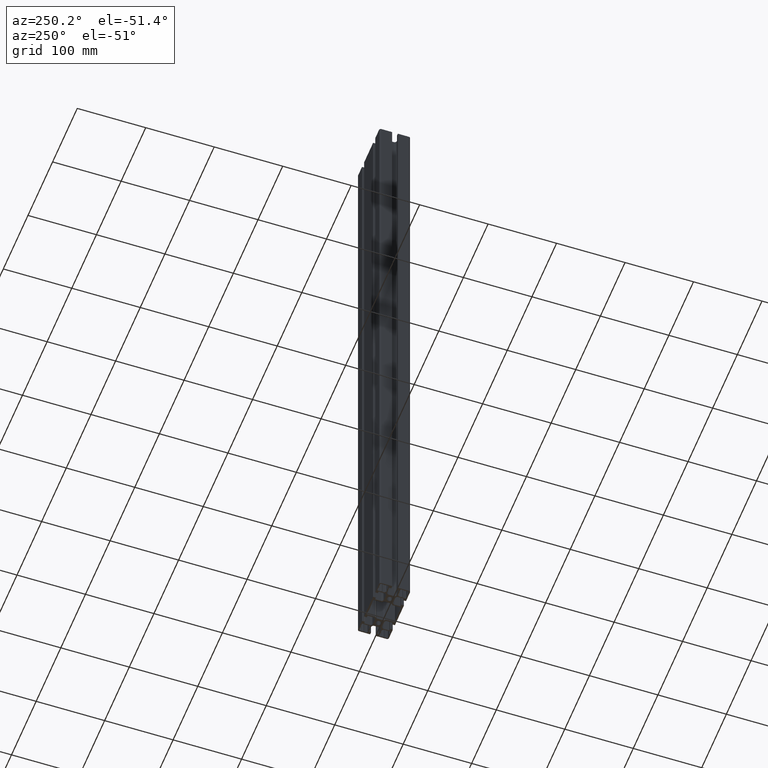
[diagram: clean part render]
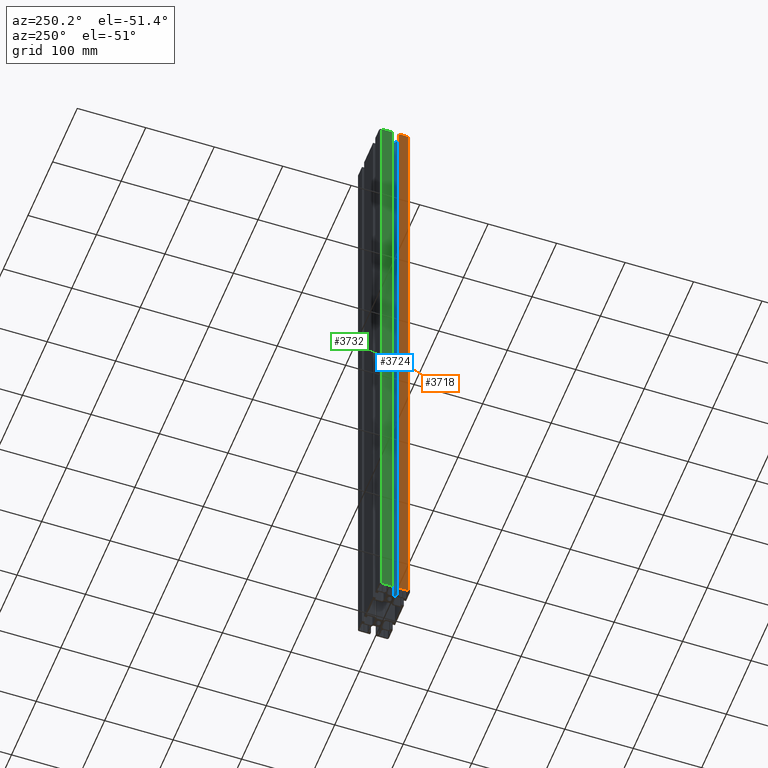
[diagram: same view with three faces highlighted in distinct colors, each labeled with its STEP entity id]
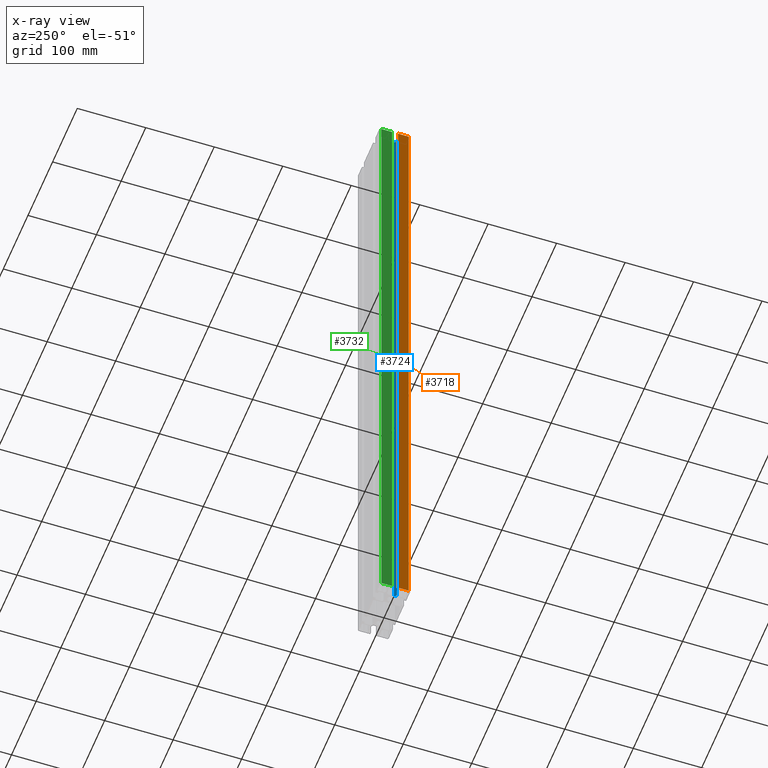
[diagram: x-ray of the same camera — body ghosted, the three highlighted faces saturated]
A machine part, auxiliary view with three faces highlighted in distinct colors.
The next image is the same camera in x-ray (body ghosted, the three faces saturated) — at least one of them is partly hidden behind the body in this view.
Their STEP definitions:

[orange] entity #3718 — the highlighted planar face has unit normal (-1, 0, 0).
#93=PLANE('',#4101);
#252=FACE_OUTER_BOUND('',#454,.T.);
#454=EDGE_LOOP('',(#3243,#3244,#3245,#3246));
#644=LINE('',#5656,#1030);
#750=LINE('',#6025,#1136);
#840=LINE('',#6261,#1226);
#841=LINE('',#6263,#1227);
#1030=VECTOR('',#4509,10.);
#1136=VECTOR('',#4801,10.);
#1226=VECTOR('',#5075,10.);
#1227=VECTOR('',#5078,10.);
#1611=VERTEX_POINT('',#5653);
#1612=VERTEX_POINT('',#5655);
#1781=VERTEX_POINT('',#6022);
#1782=VERTEX_POINT('',#6024);
#2019=EDGE_CURVE('',#1612,#1611,#644,.T.);
#2209=EDGE_CURVE('',#1781,#1782,#750,.T.);
#2328=EDGE_CURVE('',#1611,#1782,#840,.T.);
#2329=EDGE_CURVE('',#1612,#1781,#841,.T.);
#3243=ORIENTED_EDGE('',*,*,#2019,.T.);
#3244=ORIENTED_EDGE('',*,*,#2328,.T.);
#3245=ORIENTED_EDGE('',*,*,#2209,.F.);
#3246=ORIENTED_EDGE('',*,*,#2329,.F.);
#3718=ADVANCED_FACE('',(#252),#93,.T.);
#4101=AXIS2_PLACEMENT_3D('',#6262,#5076,#5077);
#4509=DIRECTION('',(0.,-1.,0.));
#4801=DIRECTION('',(0.,-1.,0.));
#5075=DIRECTION('',(0.,0.,1.));
#5076=DIRECTION('center_axis',(-1.,0.,0.));
#5077=DIRECTION('ref_axis',(0.,-1.,0.));
#5078=DIRECTION('',(0.,0.,1.));
#5653=CARTESIAN_POINT('',(-45.,-20.,0.));
#5655=CARTESIAN_POINT('',(-45.,-4.45,0.));
#5656=CARTESIAN_POINT('',(-45.,-4.45,0.));
#6022=CARTESIAN_POINT('',(-45.,-4.45,1000.));
#6024=CARTESIAN_POINT('',(-45.,-20.,1000.));
#6025=CARTESIAN_POINT('',(-45.,-4.45,1000.));
#6261=CARTESIAN_POINT('',(-45.,-20.,0.));
#6262=CARTESIAN_POINT('Origin',(-45.,-4.45,0.));
#6263=CARTESIAN_POINT('',(-45.,-4.45,0.));

[blue] entity #3724 — the highlighted cylindrical surface (edge-blend (fillet) strip) has radius 3.2 mm, axis along (0, 0, 1).
#258=FACE_OUTER_BOUND('',#460,.T.);
#460=EDGE_LOOP('',(#3267,#3268,#3269,#3270));
#846=LINE('',#6273,#1232);
#847=LINE('',#6275,#1233);
#1232=VECTOR('',#5093,10.);
#1233=VECTOR('',#5096,10.);
#1354=CIRCLE('',#3918,3.20000000000001);
#1433=CIRCLE('',#4006,3.20000000000001);
#1617=VERTEX_POINT('',#5665);
#1618=VERTEX_POINT('',#5667);
#1775=VERTEX_POINT('',#6010);
#1776=VERTEX_POINT('',#6012);
#2025=EDGE_CURVE('',#1618,#1617,#1354,.T.);
#2203=EDGE_CURVE('',#1775,#1776,#1433,.T.);
#2334=EDGE_CURVE('',#1617,#1776,#846,.T.);
#2335=EDGE_CURVE('',#1618,#1775,#847,.T.);
#3267=ORIENTED_EDGE('',*,*,#2025,.T.);
#3268=ORIENTED_EDGE('',*,*,#2334,.T.);
#3269=ORIENTED_EDGE('',*,*,#2203,.F.);
#3270=ORIENTED_EDGE('',*,*,#2335,.F.);
#3570=CYLINDRICAL_SURFACE('',#4107,3.20000000000001);
#3724=ADVANCED_FACE('',(#258),#3570,.F.);
#3918=AXIS2_PLACEMENT_3D('',#5668,#4517,#4518);
#4006=AXIS2_PLACEMENT_3D('',#6013,#4792,#4793);
#4107=AXIS2_PLACEMENT_3D('',#6274,#5094,#5095);
#4517=DIRECTION('center_axis',(0.,0.,-1.));
#4518=DIRECTION('ref_axis',(0.,1.,0.));
#4792=DIRECTION('center_axis',(0.,0.,-1.));
#4793=DIRECTION('ref_axis',(0.,1.,0.));
#5093=DIRECTION('',(0.,0.,1.));
#5094=DIRECTION('center_axis',(0.,0.,1.));
#5095=DIRECTION('ref_axis',(0.,1.,0.));
#5096=DIRECTION('',(0.,0.,1.));
#5665=CARTESIAN_POINT('',(-32.45,-7.15,0.));
#5667=CARTESIAN_POINT('',(-29.25,-3.95,0.));
#5668=CARTESIAN_POINT('Origin',(-32.45,-3.95,0.));
#6010=CARTESIAN_POINT('',(-29.25,-3.95,1000.));
#6012=CARTESIAN_POINT('',(-32.45,-7.15,1000.));
#6013=CARTESIAN_POINT('Origin',(-32.45,-3.95,1000.));
#6273=CARTESIAN_POINT('',(-32.45,-7.15,0.));
#6274=CARTESIAN_POINT('Origin',(-32.45,-3.95,0.));
#6275=CARTESIAN_POINT('',(-29.25,-3.95,0.));

[green] entity #3732 — the highlighted planar face has unit normal (-1, 0, 0).
#101=PLANE('',#4115);
#266=FACE_OUTER_BOUND('',#468,.T.);
#468=EDGE_LOOP('',(#3299,#3300,#3301,#3302));
#652=LINE('',#5684,#1038);
#742=LINE('',#5997,#1128);
#854=LINE('',#6289,#1240);
#855=LINE('',#6291,#1241);
#1038=VECTOR('',#4529,10.);
#1128=VECTOR('',#4781,10.);
#1240=VECTOR('',#5117,10.);
#1241=VECTOR('',#5120,10.);
#1625=VERTEX_POINT('',#5681);
#1626=VERTEX_POINT('',#5683);
#1767=VERTEX_POINT('',#5994);
#1768=VERTEX_POINT('',#5996);
#2033=EDGE_CURVE('',#1626,#1625,#652,.T.);
#2195=EDGE_CURVE('',#1767,#1768,#742,.T.);
#2342=EDGE_CURVE('',#1625,#1768,#854,.T.);
#2343=EDGE_CURVE('',#1626,#1767,#855,.T.);
#3299=ORIENTED_EDGE('',*,*,#2033,.T.);
#3300=ORIENTED_EDGE('',*,*,#2342,.T.);
#3301=ORIENTED_EDGE('',*,*,#2195,.F.);
#3302=ORIENTED_EDGE('',*,*,#2343,.F.);
#3732=ADVANCED_FACE('',(#266),#101,.T.);
#4115=AXIS2_PLACEMENT_3D('',#6290,#5118,#5119);
#4529=DIRECTION('',(0.,-1.,0.));
#4781=DIRECTION('',(0.,-1.,0.));
#5117=DIRECTION('',(0.,0.,1.));
#5118=DIRECTION('center_axis',(-1.,0.,0.));
#5119=DIRECTION('ref_axis',(0.,-1.,0.));
#5120=DIRECTION('',(0.,0.,1.));
#5681=CARTESIAN_POINT('',(-45.,4.45,0.));
#5683=CARTESIAN_POINT('',(-45.,20.,0.));
#5684=CARTESIAN_POINT('',(-45.,20.,0.));
#5994=CARTESIAN_POINT('',(-45.,20.,1000.));
#5996=CARTESIAN_POINT('',(-45.,4.45,1000.));
#5997=CARTESIAN_POINT('',(-45.,20.,1000.));
#6289=CARTESIAN_POINT('',(-45.,4.45,0.));
#6290=CARTESIAN_POINT('Origin',(-45.,20.,0.));
#6291=CARTESIAN_POINT('',(-45.,20.,0.));